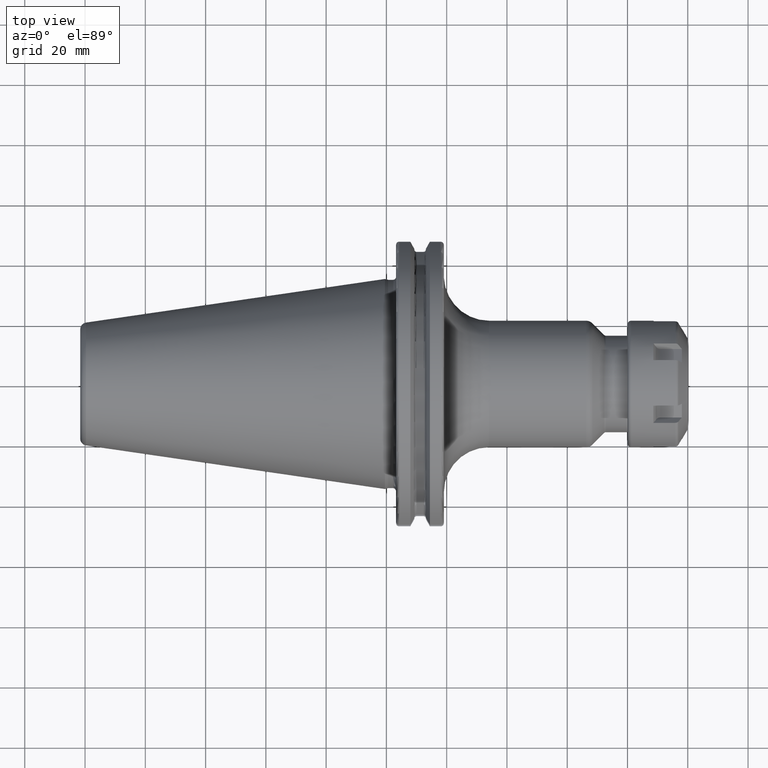
[diagram: clean part render]
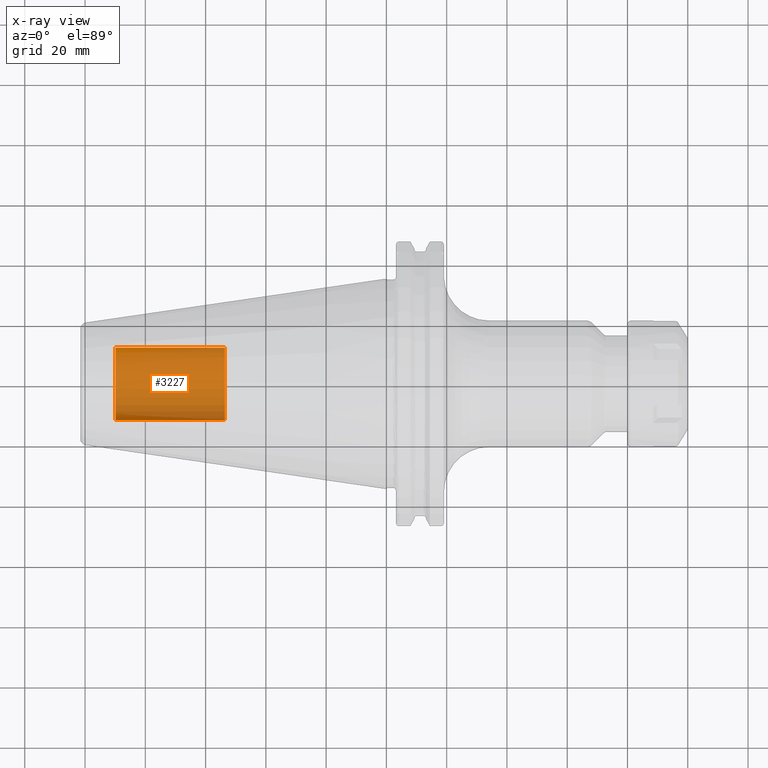
[diagram: x-ray — body ghosted, one internal face saturated and labeled with its STEP entity id]
A machine part, top view, then the same camera in x-ray: the body is ghosted and one INTERNAL B-rep face — a face not visible from any outside direction — is saturated and labeled: STEP entity #3227.
In plain terms, the highlighted cylindrical surface (edge-blend (fillet) strip) has radius 12.0032 mm, axis along (1, 0, 0).
Its self-contained STEP definition (entity closure, byte-faithful):
#3162=CARTESIAN_POINT('',(-8.985E1,0.E0,0.E0));
#3163=DIRECTION('',(-1.E0,0.E0,0.E0));
#3164=DIRECTION('',(0.E0,1.E0,0.E0));
#3165=AXIS2_PLACEMENT_3D('',#3162,#3163,#3164);
#3167=DIRECTION('',(1.E0,0.E0,0.E0));
#3168=VECTOR('',#3167,3.625E1);
#3169=CARTESIAN_POINT('',(-8.985E1,-1.200325E1,0.E0));
#3170=LINE('',#3169,#3168);
#3176=DIRECTION('',(1.E0,0.E0,0.E0));
#3177=VECTOR('',#3176,3.625E1);
#3178=CARTESIAN_POINT('',(-8.985E1,1.200325E1,0.E0));
#3179=LINE('',#3178,#3177);
#3185=CARTESIAN_POINT('',(-5.36E1,0.E0,0.E0));
#3186=DIRECTION('',(1.E0,0.E0,0.E0));
#3187=DIRECTION('',(0.E0,-1.E0,0.E0));
#3188=AXIS2_PLACEMENT_3D('',#3185,#3186,#3187);
#3200=CARTESIAN_POINT('',(-8.985E1,1.200325E1,0.E0));
#3201=CARTESIAN_POINT('',(-8.985E1,-1.200325E1,0.E0));
#3202=VERTEX_POINT('',#3200);
#3203=VERTEX_POINT('',#3201);
#3204=CARTESIAN_POINT('',(-5.36E1,1.200325E1,0.E0));
#3205=CARTESIAN_POINT('',(-5.36E1,-1.200325E1,0.E0));
#3206=VERTEX_POINT('',#3204);
#3207=VERTEX_POINT('',#3205);
#3212=CARTESIAN_POINT('',(-8.985E1,0.E0,0.E0));
#3213=DIRECTION('',(1.E0,0.E0,0.E0));
#3214=DIRECTION('',(0.E0,1.E0,0.E0));
#3215=AXIS2_PLACEMENT_3D('',#3212,#3213,#3214);
#3216=CYLINDRICAL_SURFACE('',#3215,1.200325E1);
#3218=ORIENTED_EDGE('',*,*,#3217,.T.);
#3220=ORIENTED_EDGE('',*,*,#3219,.T.);
#3222=ORIENTED_EDGE('',*,*,#3221,.T.);
#3224=ORIENTED_EDGE('',*,*,#3223,.F.);
#3225=EDGE_LOOP('',(#3218,#3220,#3222,#3224));
#3226=FACE_OUTER_BOUND('',#3225,.F.);
#3227=ADVANCED_FACE('',(#3226),#3216,.T.);
#3166=CIRCLE('',#3165,1.200325E1);
#3189=CIRCLE('',#3188,1.200325E1);
#3217=EDGE_CURVE('',#3202,#3203,#3166,.T.);
#3219=EDGE_CURVE('',#3203,#3207,#3170,.T.);
#3221=EDGE_CURVE('',#3207,#3206,#3189,.T.);
#3223=EDGE_CURVE('',#3202,#3206,#3179,.T.);